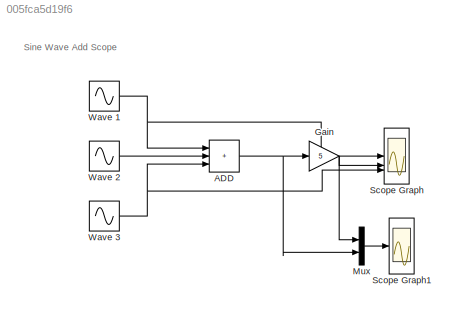
MODEL slx_005fca5d19f6
KIND model
CONFIG AbsTol = auto
CONFIG EnableMultiTasking = off
CONFIG FixedStep = auto
CONFIG MaxStep = 0.01
CONFIG MinStep = auto
CONFIG RelTol = 1e-3
CONFIG SampleTimeConstraint = Unconstrained
CONFIG SolverName = VariableStepAuto
CONFIG StartTime = 0.0
CONFIG StopTime = 10
BLOCK [Sum] ADD
  IconShape = rectangular
  Inputs = +++
BLOCK [Gain] Gain
  Gain = 5
BLOCK [Mux] Mux
  DisplayOption = bar
  Inputs = 2
BLOCK [Scope] Scope Graph
  ActiveDisplayYMaximum = 12.499959554759947
  ActiveDisplayYMinimum = -12.499986958278871
  ContainerLayout = {"WindowBounds":[960,496,960,1045],"gridDimensions":{"w":1,"h":1},"tileCount":1,"tileCoverage":1,"columnWeights":1,"rowWeights":1,"tileOccupancy":{}}
  DataLoggingLimitDataPoints = on
  Floating = off
  GraphicalSettings = {"Style":{"BackgroundColor":[0,0,0],"AxesColor":[0,0,0],"LabelsColor":[0,1,0],"PreserveColors":false,"Visible":[true,true,true],"LineStyle":["-","-","-"],"LineWidth":[1.5,1.5,1.5],"BarWidth":[0.9,0.9,0.9],"LineColor":["auto","auto","auto"],"LineFaceAlpha":[1,1,1],"LineEdgeAlpha":[1,1,1],"Marker":["none","none","none"],"FontSize":8.5,"LineTrueColor":[[1,0.9098039215686274,0.39215686274509803],[1,0....<+2680ch>
  LayoutDimensionsString = [3,1]
  MultipleDisplayCache = [{"MaxYLimMag":12.499986958278871,"MaxYLimReal":12.499959554759947,"MinYLimMag":0,"MinYLimReal":-12.499986958278871,"PlotAsMagnitudePhase":false,"ShowGrid":true,"ShowLegend":true,"Title":"","YLabel":"Amptitude"},{"MaxYLimMag":69.52563494245129,"MaxYLimReal":69.515406229270937,"MinYLimMag":0,"MinYLimReal":-69.52563494245129,"PlotAsMagnitudePhase":false,"ShowGrid":true,"ShowLegend":true,"Title":"%<S...<+242ch>
  NumInputPorts = 3
  OpenAtSimulationStart = on
  ScopeFrameLocation = window
  ShowLegend = on
  ShowTimeAxisLabel = on
  TimeAxisLabels = All
  TimeSpan = 10
  WasSavedAsWebScope = on
  WindowPosition = [303.000000,-905.000000,536.000000,624.000000,]
  YLabel = Amptitude
BLOCK [Scope] Scope Graph1
  ActiveDisplayYMaximum = 58.085443563719636
  ActiveDisplayYMinimum = -53.218276643963293
  ContainerLayout = {"WindowBounds":[960,496,960,1045],"gridDimensions":{"w":1,"h":1},"tileCount":1,"tileCoverage":1,"columnWeights":1,"rowWeights":1,"tileOccupancy":{}}
  DataLoggingLimitDataPoints = on
  DataLoggingVariableName = ScopeData1
  Floating = off
  GraphicalSettings = {"Style":{"BackgroundColor":[0,0,0],"AxesColor":[0,0,0],"LabelsColor":[0,1,0],"PreserveColors":false,"Visible":[true,true],"LineStyle":["-","-"],"LineWidth":[1.5,1.5],"BarWidth":[0.9,0.9],"LineColor":["auto","auto"],"LineFaceAlpha":[1,1],"LineEdgeAlpha":[1,1],"Marker":["none","none"],"FontSize":8.5,"LineTrueColor":[[1,0.9098039215686274,0.39215686274509803],[0.14901960784313725,0.5490196078431373,...<+1927ch>
  LayoutDimensionsString = [1,1]
  MultipleDisplayCache = [{"MaxYLimMag":12.499986958278871,"MaxYLimReal":58.085443563719636,"MinYLimMag":0,"MinYLimReal":-53.218276643963293,"PlotAsMagnitudePhase":false,"ShowGrid":true,"ShowLegend":true,"Title":"","YLabel":"Amptitude"}]
  NumInputPorts = 1
  OpenAtSimulationStart = on
  ScopeFrameLocation = window
  ShowLegend = on
  ShowTimeAxisLabel = on
  TimeAxisLabels = All
  TimeSpan = 10
  WasSavedAsWebScope = on
  WindowPosition = [1063.000000,-423.000000,536.000000,624.000000,]
  YLabel = Amptitude
BLOCK [Sin] Wave 1
  Amplitude = 10
  Frequency = 8
  SampleTime = 0
BLOCK [Sin] Wave 2
  SampleTime = 0
BLOCK [Sin] Wave 3
  Frequency = 10
  SampleTime = 0
ANNOTATION (root): Sine Wave Add Scope
NET ADD:1 -> Gain:1, Mux:2
NET Gain:1 -> Mux:1, Scope Graph:2
LINE Mux:1 -> Scope Graph1:1
NET Wave 1:1 -> ADD:1, Scope Graph:1
LINE Wave 2:1 -> ADD:2
NET Wave 3:1 -> ADD:3, Scope Graph:3
note: NET lines group one-source signal fan-out (src -> all destinations, sorted); 1:1 wires keep LINE
